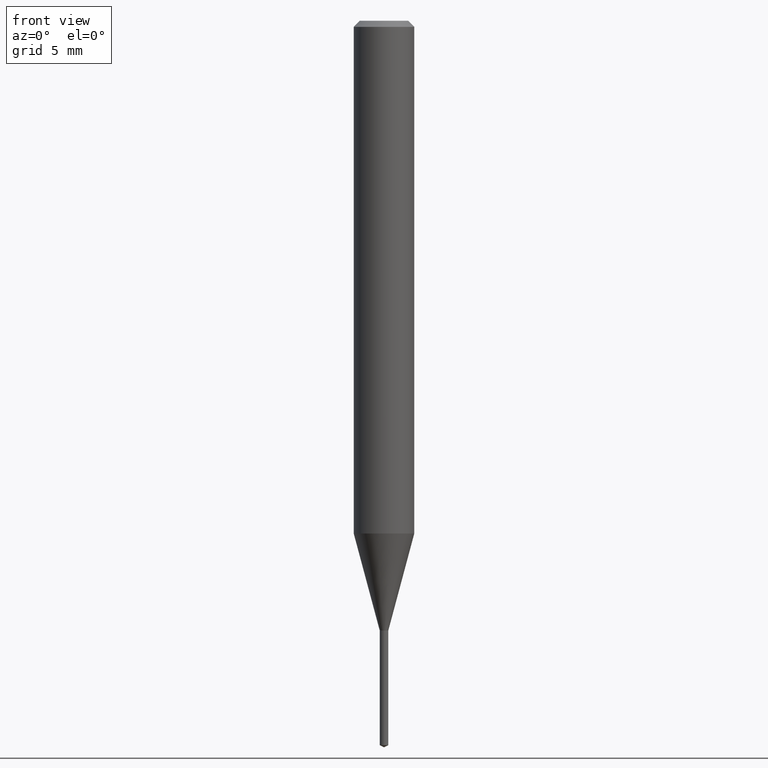
[diagram: clean part render]
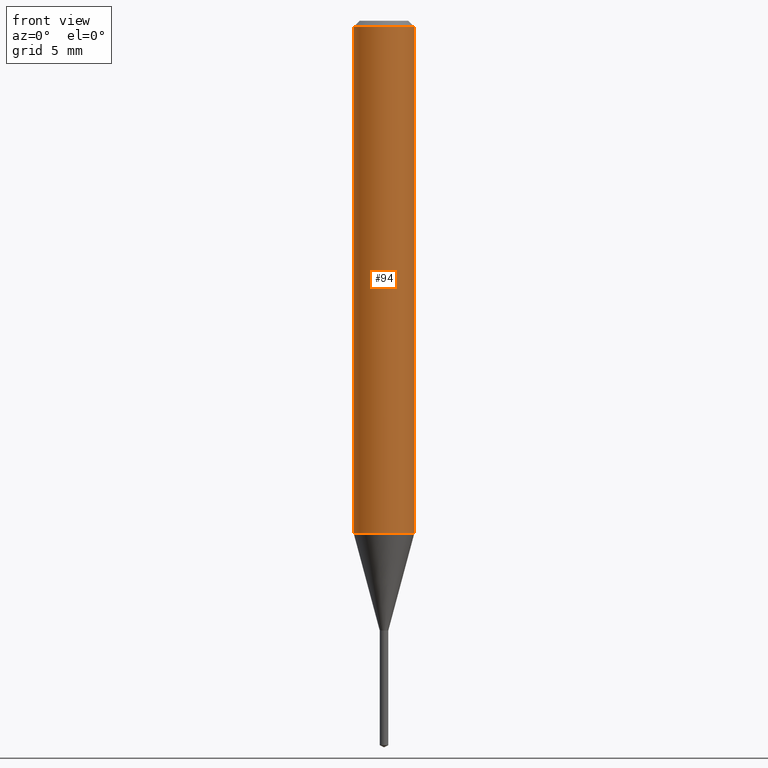
[diagram: same view with one face highlighted and labeled with its STEP entity id]
A machine part, front view. The second image highlights one B-rep face of the part: STEP entity #94.
In plain terms, the highlighted cylindrical surface (edge-blend (fillet) strip) has radius 1.5875 mm, axis along (-0, 0, 1).
Its self-contained STEP definition (entity closure, byte-faithful):
#22 = FACE_OUTER_BOUND ( 'NONE', #90, .T. ) ;
#43 = AXIS2_PLACEMENT_3D ( 'NONE', #320, #404, #475 ) ;
#48 = EDGE_CURVE ( 'NONE', #330, #189, #436, .T. ) ;
#49 = DIRECTION ( 'NONE',  ( 1.000000000000000000, -6.982962677686266711E-15, 4.876176775795935793E-29 ) ) ;
#55 = LINE ( 'NONE', #215, #465 ) ;
#73 = LINE ( 'NONE', #261, #328 ) ;
#81 = CARTESIAN_POINT ( 'NONE',  ( -0.06250000000000000000, -1.426079953569255105E-15, -0.01250000000000008570 ) ) ;
#90 = EDGE_LOOP ( 'NONE', ( #242, #159, #277, #429 ) ) ;
#94 = ADVANCED_FACE ( 'NONE', ( #22 ), #181, .T. ) ;
#145 = DIRECTION ( 'NONE',  ( -2.445468806185136877E-29, 3.491481338843145188E-15, 1.000000000000000000 ) ) ;
#159 = ORIENTED_EDGE ( 'NONE', *, *, #280, .T. ) ;
#170 = EDGE_CURVE ( 'NONE', #184, #330, #73, .T. ) ;
#181 = CYLINDRICAL_SURFACE ( 'NONE', #194, 0.06250000000000006939 ) ;
#183 = CARTESIAN_POINT ( 'NONE',  ( -0.06250000000000013878, -3.252605600253034449E-15, -1.058775474173935471 ) ) ;
#184 = VERTEX_POINT ( 'NONE', #183 ) ;
#189 = VERTEX_POINT ( 'NONE', #410 ) ;
#191 = DIRECTION ( 'NONE',  ( -2.445468806185136597E-29, 3.491481338843145583E-15, 1.000000000000000000 ) ) ;
#194 = AXIS2_PLACEMENT_3D ( 'NONE', #435, #291, #49 ) ;
#215 = CARTESIAN_POINT ( 'NONE',  ( 0.06250000000000006939, -4.364351673553921624E-16, 3.047610484872463374E-30 ) ) ;
#230 = CIRCLE ( 'NONE', #348, 0.06250000000000013878 ) ;
#242 = ORIENTED_EDGE ( 'NONE', *, *, #170, .F. ) ;
#261 = CARTESIAN_POINT ( 'NONE',  ( -0.06250000000000006939, 4.440892098500631092E-16, -3.074334431409319267E-30 ) ) ;
#277 = ORIENTED_EDGE ( 'NONE', *, *, #488, .T. ) ;
#280 = EDGE_CURVE ( 'NONE', #184, #422, #230, .T. ) ;
#291 = DIRECTION ( 'NONE',  ( -2.445468806185136597E-29, 3.491481338843145583E-15, 1.000000000000000000 ) ) ;
#320 = CARTESIAN_POINT ( 'NONE',  ( 3.056836007731441853E-31, -4.364351673553962300E-17, -0.01250000000000008570 ) ) ;
#328 = VECTOR ( 'NONE', #145, 39.37007874015748143 ) ;
#330 = VERTEX_POINT ( 'NONE', #81 ) ;
#348 = AXIS2_PLACEMENT_3D ( 'NONE', #408, #191, #448 ) ;
#350 = CARTESIAN_POINT ( 'NONE',  ( 0.06250000000000013878, -4.133129977458490706E-15, -1.058775474173935471 ) ) ;
#392 = DIRECTION ( 'NONE',  ( -2.445468806185136877E-29, 3.491481338843145188E-15, 1.000000000000000000 ) ) ;
#404 = DIRECTION ( 'NONE',  ( -2.445468806185136597E-29, 3.491481338843145583E-15, 1.000000000000000000 ) ) ;
#408 = CARTESIAN_POINT ( 'NONE',  ( 2.589202394846235411E-29, -3.696694810103098248E-15, -1.058775474173935471 ) ) ;
#410 = CARTESIAN_POINT ( 'NONE',  ( 0.06250000000000000000, -4.800786840909313294E-16, -0.01250000000000008570 ) ) ;
#422 = VERTEX_POINT ( 'NONE', #350 ) ;
#429 = ORIENTED_EDGE ( 'NONE', *, *, #48, .F. ) ;
#435 = CARTESIAN_POINT ( 'NONE',  ( 0.000000000000000000, 0.000000000000000000, 0.000000000000000000 ) ) ;
#436 = CIRCLE ( 'NONE', #43, 0.06250000000000000000 ) ;
#448 = DIRECTION ( 'NONE',  ( 1.000000000000000000, -6.982962677686262766E-15, 0.000000000000000000 ) ) ;
#465 = VECTOR ( 'NONE', #392, 39.37007874015748143 ) ;
#475 = DIRECTION ( 'NONE',  ( 1.000000000000000000, -6.982962677686266711E-15, 0.000000000000000000 ) ) ;
#488 = EDGE_CURVE ( 'NONE', #422, #189, #55, .T. ) ;